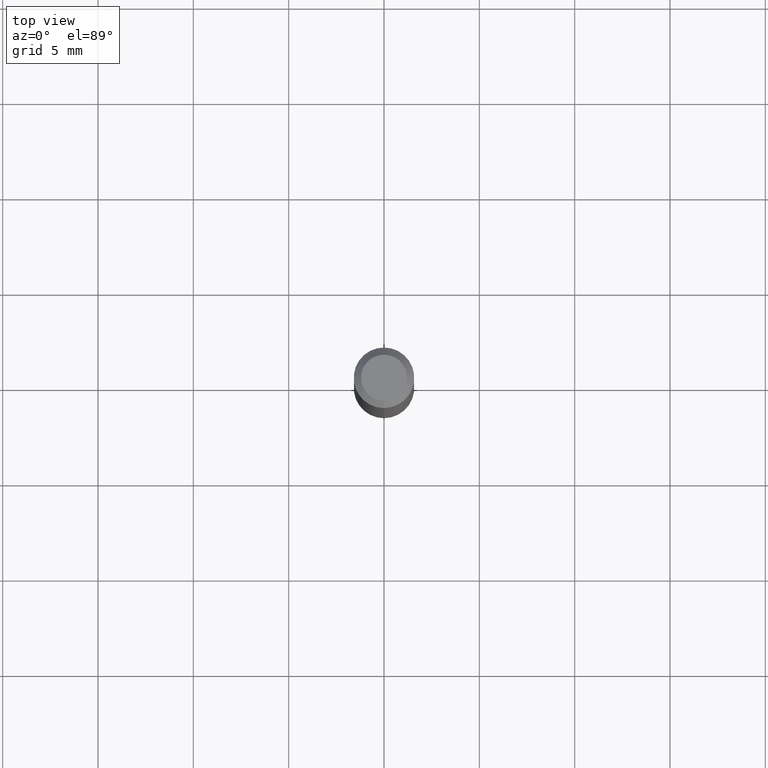
[diagram: clean part render]
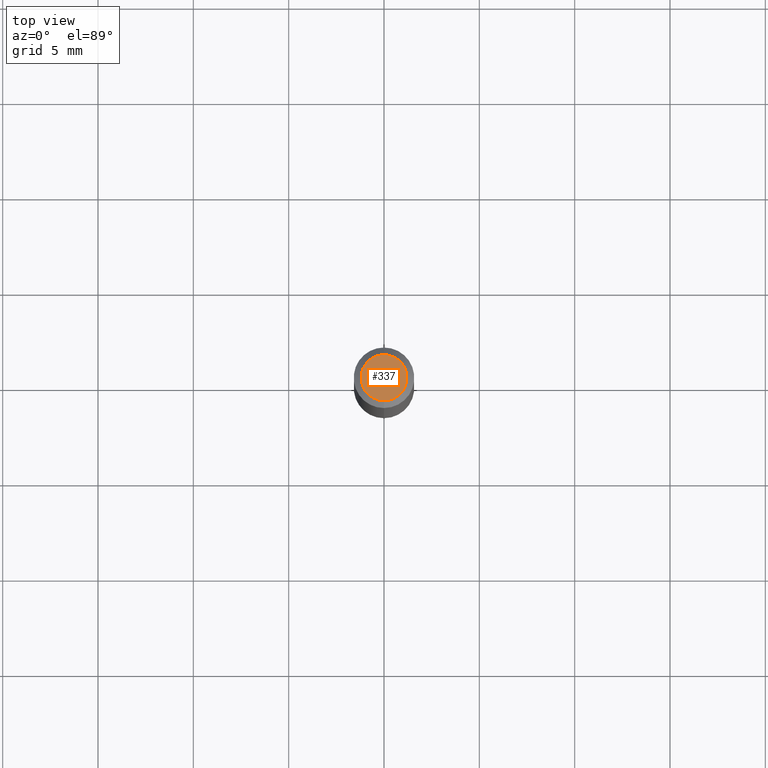
[diagram: same view with one face highlighted and labeled with its STEP entity id]
A machine part, top view. The second image highlights one B-rep face of the part: STEP entity #337.
In plain terms, the highlighted planar face has unit normal (0, -0, -1).
Its self-contained STEP definition (entity closure, byte-faithful):
#26 = DIRECTION ( 'NONE',  ( -6.982962677686266711E-15, -1.000000000000000000, 3.491529342725255562E-15 ) ) ;
#54 = EDGE_CURVE ( 'NONE', #411, #137, #285, .T. ) ;
#73 = DIRECTION ( 'NONE',  ( -2.445435285253421308E-29, 3.491529342725255167E-15, 1.000000000000000000 ) ) ;
#137 = VERTEX_POINT ( 'NONE', #472 ) ;
#151 = FACE_OUTER_BOUND ( 'NONE', #486, .T. ) ;
#156 = DIRECTION ( 'NONE',  ( 2.445435285253421028E-29, -3.491529342725254773E-15, -1.000000000000000000 ) ) ;
#163 = DIRECTION ( 'NONE',  ( -6.982962677686266711E-15, -1.000000000000000000, 3.491529342725255562E-15 ) ) ;
#195 = DIRECTION ( 'NONE',  ( -2.445435285253421308E-29, 3.491529342725255167E-15, 1.000000000000000000 ) ) ;
#197 = CARTESIAN_POINT ( 'NONE',  ( -3.773273898774340269E-16, -0.04749999999999999362, 1.569896043720187075E-16 ) ) ;
#261 = PLANE ( 'NONE',  #316 ) ;
#264 = CARTESIAN_POINT ( 'NONE',  ( 2.166176212509684537E-46, -3.092810451006163325E-32, -8.858039407430904597E-18 ) ) ;
#285 = CIRCLE ( 'NONE', #389, 0.04749999999999999362 ) ;
#287 = ORIENTED_EDGE ( 'NONE', *, *, #54, .T. ) ;
#292 = ORIENTED_EDGE ( 'NONE', *, *, #351, .T. ) ;
#304 = DIRECTION ( 'NONE',  ( 6.982962677686265922E-15, 1.000000000000000000, -3.491529342725254773E-15 ) ) ;
#316 = AXIS2_PLACEMENT_3D ( 'NONE', #384, #156, #304 ) ;
#320 = CARTESIAN_POINT ( 'NONE',  ( 2.166176212509684537E-46, -3.092810451006163325E-32, -8.858039407430904597E-18 ) ) ;
#337 = ADVANCED_FACE ( 'NONE', ( #151 ), #261, .F. ) ;
#342 = CIRCLE ( 'NONE', #473, 0.04749999999999999362 ) ;
#351 = EDGE_CURVE ( 'NONE', #137, #411, #342, .T. ) ;
#384 = CARTESIAN_POINT ( 'NONE',  ( 3.316907271900976096E-16, 0.04749999999999999362, -1.702766634831650498E-16 ) ) ;
#389 = AXIS2_PLACEMENT_3D ( 'NONE', #320, #195, #163 ) ;
#411 = VERTEX_POINT ( 'NONE', #197 ) ;
#472 = CARTESIAN_POINT ( 'NONE',  ( 3.840629472727447874E-16, 0.04749999999999999362, -1.747056831868805136E-16 ) ) ;
#473 = AXIS2_PLACEMENT_3D ( 'NONE', #264, #73, #26 ) ;
#486 = EDGE_LOOP ( 'NONE', ( #292, #287 ) ) ;